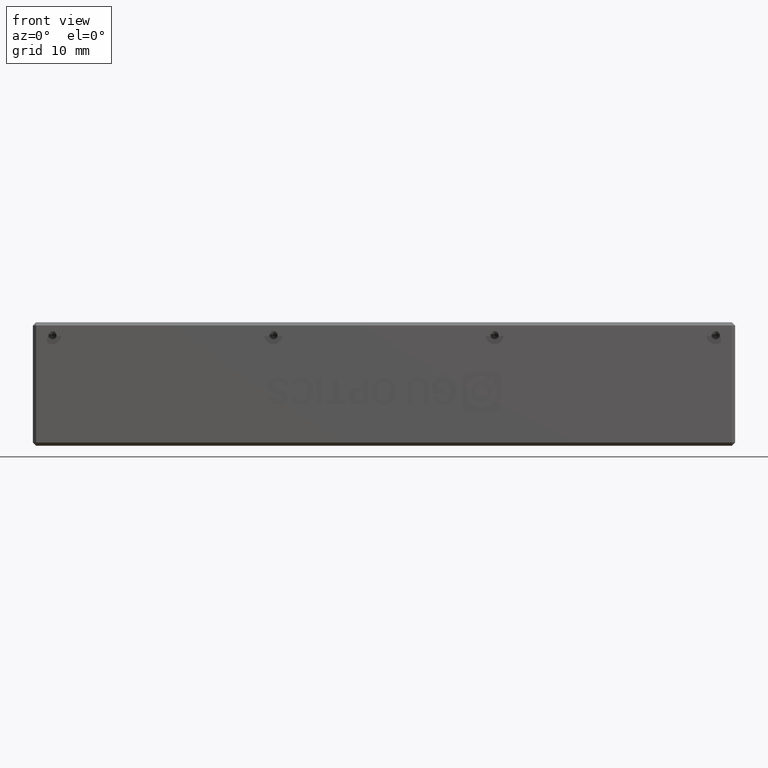
[diagram: clean part render]
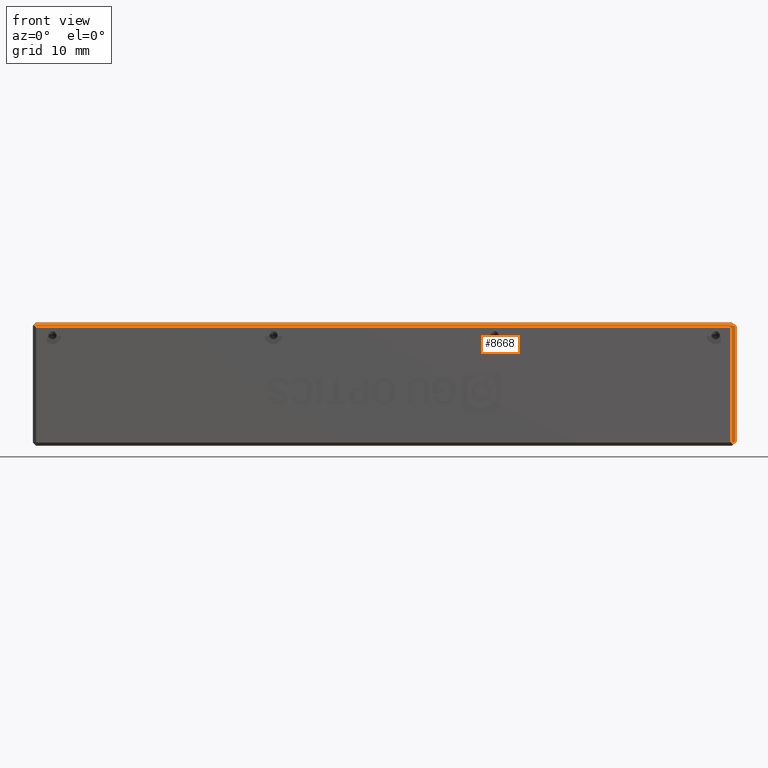
[diagram: same view with one face highlighted and labeled with its STEP entity id]
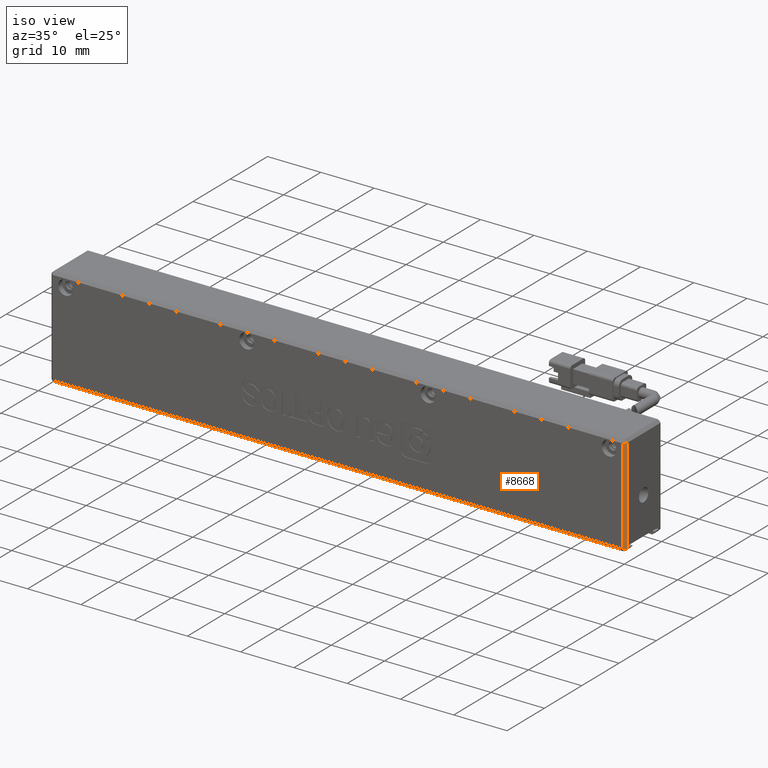
[diagram: same view with one face highlighted and labeled with its STEP entity id]
A machine part, front view. The second image highlights one B-rep face of the part: STEP entity #8668.
A second angle (iso view) of the same face is appended — the face is thin or edge-on in the first view.
In plain terms, the highlighted planar face has unit normal (-0.7071, 0.7071, 0).
Its self-contained STEP definition (entity closure, byte-faithful):
#118 = VECTOR ( 'NONE', #14017, 1000.000000000000000 ) ;
#1500 = LINE ( 'NONE', #5836, #118 ) ;
#2327 = DIRECTION ( 'NONE',  ( -0.7071067811865474600, -0.7071067811865474600, 0.0000000000000000000 ) ) ;
#2384 = AXIS2_PLACEMENT_3D ( 'NONE', #21419, #4570, #11270 ) ;
#2471 = VECTOR ( 'NONE', #2327, 1000.000000000000100 ) ;
#3019 = PLANE ( 'NONE',  #2384 ) ;
#3034 = EDGE_CURVE ( 'NONE', #13519, #13447, #10075, .T. ) ;
#3928 = EDGE_CURVE ( 'NONE', #7975, #13519, #1500, .T. ) ;
#4570 = DIRECTION ( 'NONE',  ( -0.7071067811865475700, 0.7071067811865475700, 0.0000000000000000000 ) ) ;
#5836 = CARTESIAN_POINT ( 'NONE',  ( 69.91164417057902400, 0.8214788732394430200, 9.999999999999998200 ) ) ;
#6154 = VERTEX_POINT ( 'NONE', #15552 ) ;
#6192 = CARTESIAN_POINT ( 'NONE',  ( 69.91164417057902400, 0.8214788732394430200, 9.499999999999984000 ) ) ;
#6219 = VECTOR ( 'NONE', #20529, 1000.000000000000000 ) ;
#6473 = DIRECTION ( 'NONE',  ( 0.7071067811865474600, 0.7071067811865474600, -0.0000000000000000000 ) ) ;
#7415 = EDGE_LOOP ( 'NONE', ( #13174, #10881, #11821, #21076 ) ) ;
#7910 = FACE_OUTER_BOUND ( 'NONE', #7415, .T. ) ;
#7975 = VERTEX_POINT ( 'NONE', #20732 ) ;
#8668 = ADVANCED_FACE ( 'NONE', ( #7910 ), #3019, .F. ) ;
#10075 = LINE ( 'NONE', #19343, #2471 ) ;
#10657 = LINE ( 'NONE', #15549, #6219 ) ;
#10881 = ORIENTED_EDGE ( 'NONE', *, *, #12983, .F. ) ;
#11270 = DIRECTION ( 'NONE',  ( -0.7071067811865474600, -0.7071067811865474600, 0.0000000000000000000 ) ) ;
#11627 = CARTESIAN_POINT ( 'NONE',  ( 69.91164417057902400, 0.8214788732394430200, -8.499999999999989300 ) ) ;
#11635 = EDGE_CURVE ( 'NONE', #6154, #13447, #10657, .T. ) ;
#11821 = ORIENTED_EDGE ( 'NONE', *, *, #11635, .T. ) ;
#12983 = EDGE_CURVE ( 'NONE', #6154, #7975, #18391, .T. ) ;
#13174 = ORIENTED_EDGE ( 'NONE', *, *, #3928, .F. ) ;
#13447 = VERTEX_POINT ( 'NONE', #21483 ) ;
#13519 = VERTEX_POINT ( 'NONE', #11627 ) ;
#13943 = VECTOR ( 'NONE', #6473, 1000.000000000000100 ) ;
#14017 = DIRECTION ( 'NONE',  ( -0.0000000000000000000, -0.0000000000000000000, -1.000000000000000000 ) ) ;
#15549 = CARTESIAN_POINT ( 'NONE',  ( 69.41164417057902400, 0.3214788732394287000, 9.999999999999998200 ) ) ;
#15552 = CARTESIAN_POINT ( 'NONE',  ( 69.41164417057902400, 0.3214788732394287000, 9.499999999999984000 ) ) ;
#18391 = LINE ( 'NONE', #6192, #13943 ) ;
#19343 = CARTESIAN_POINT ( 'NONE',  ( 69.91164417057902400, 0.8214788732394430200, -8.499999999999992900 ) ) ;
#20529 = DIRECTION ( 'NONE',  ( -0.0000000000000000000, 0.0000000000000000000, -1.000000000000000000 ) ) ;
#20732 = CARTESIAN_POINT ( 'NONE',  ( 69.91164417057902400, 0.8214788732394413500, 9.499999999999984000 ) ) ;
#21076 = ORIENTED_EDGE ( 'NONE', *, *, #3034, .F. ) ;
#21419 = CARTESIAN_POINT ( 'NONE',  ( 69.91164417057902400, 0.8214788732394430200, 9.999999999999998200 ) ) ;
#21483 = CARTESIAN_POINT ( 'NONE',  ( 69.41164417057903800, 0.3214788732394287000, -8.499999999999987600 ) ) ;